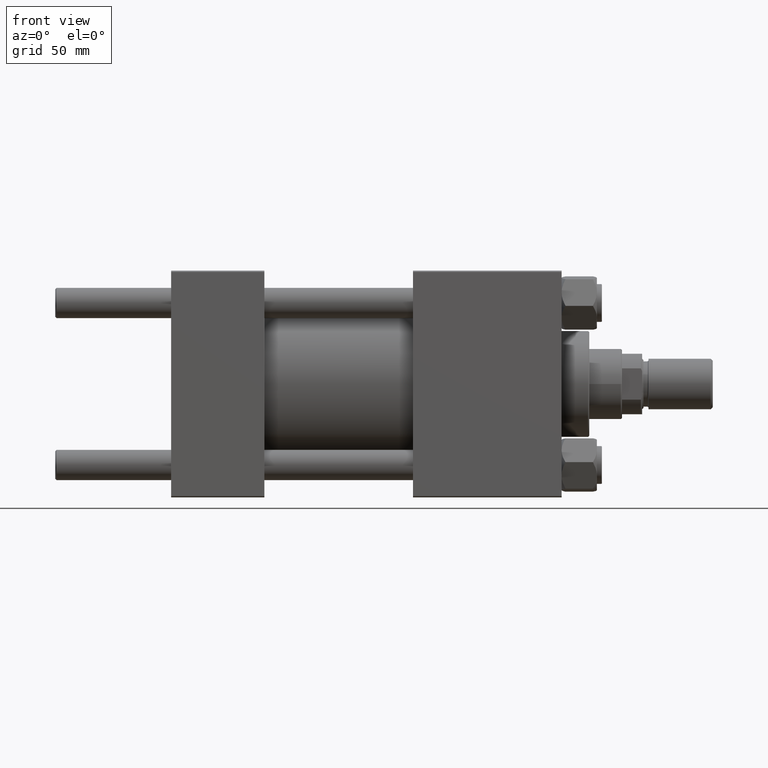
[diagram: clean part render]
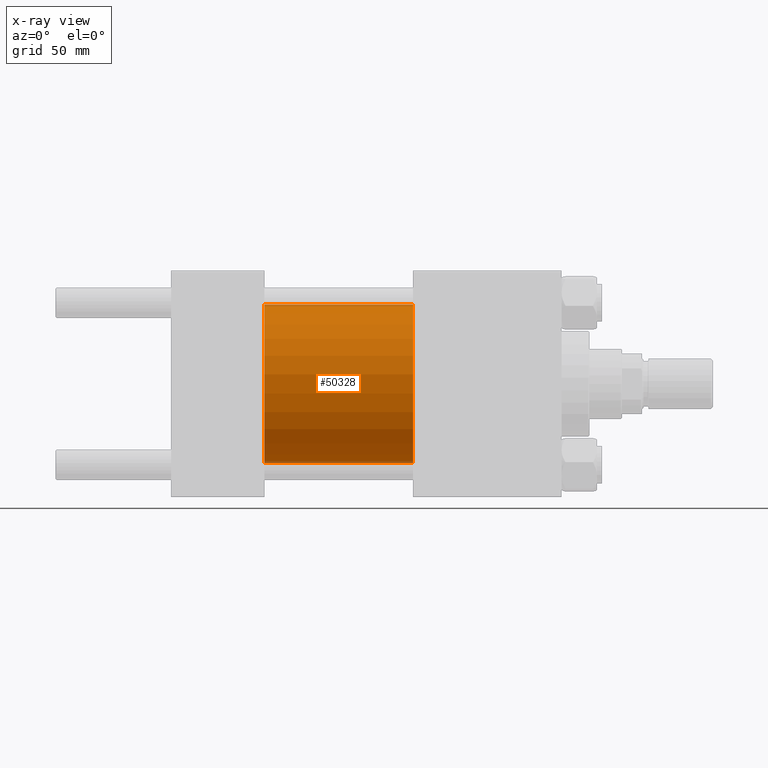
[diagram: x-ray — body ghosted, one internal face saturated and labeled with its STEP entity id]
A machine part, front view, then the same camera in x-ray: the body is ghosted and one INTERNAL B-rep face — a face not visible from any outside direction — is saturated and labeled: STEP entity #50328.
In plain terms, the highlighted cylindrical surface (partial cylindrical patch) has radius 31.5 mm, axis along (-1, -0, -0).
Its self-contained STEP definition (entity closure, byte-faithful):
#2346 = LINE ( 'NONE', #45136, #49511 ) ;
#4330 = DIRECTION ( 'NONE',  ( -1.000000000000000000, -0.000000000000000000, -0.000000000000000000 ) ) ;
#5619 = DIRECTION ( 'NONE',  ( 0.000000000000000000, 0.000000000000000000, -1.000000000000000000 ) ) ;
#6726 = CIRCLE ( 'NONE', #23805, 31.50000000000000000 ) ;
#8159 = CYLINDRICAL_SURFACE ( 'NONE', #16162, 31.50000000000000000 ) ;
#8962 = EDGE_LOOP ( 'NONE', ( #37425, #45766, #34417, #44333 ) ) ;
#12010 = LINE ( 'NONE', #27563, #12782 ) ;
#12782 = VECTOR ( 'NONE', #20662, 1000.000000000000000 ) ;
#13258 = CARTESIAN_POINT ( 'NONE',  ( 37.00000000000000000, 0.000000000000000000, 0.000000000000000000 ) ) ;
#13401 = DIRECTION ( 'NONE',  ( 0.000000000000000000, 0.000000000000000000, -1.000000000000000000 ) ) ;
#13816 = DIRECTION ( 'NONE',  ( -1.000000000000000000, -0.000000000000000000, -0.000000000000000000 ) ) ;
#15399 = EDGE_CURVE ( 'NONE', #26593, #33480, #23415, .T. ) ;
#16162 = AXIS2_PLACEMENT_3D ( 'NONE', #39236, #4330, #19864 ) ;
#16925 = CARTESIAN_POINT ( 'NONE',  ( 96.00000000000000000, 3.857637417314162689E-15, -31.50000000000000000 ) ) ;
#17354 = CARTESIAN_POINT ( 'NONE',  ( 37.00000000000000000, 0.000000000000000000, 31.50000000000000000 ) ) ;
#19864 = DIRECTION ( 'NONE',  ( 0.000000000000000000, 0.000000000000000000, 1.000000000000000000 ) ) ;
#20662 = DIRECTION ( 'NONE',  ( -1.000000000000000000, -0.000000000000000000, -0.000000000000000000 ) ) ;
#21155 = EDGE_CURVE ( 'NONE', #26593, #42460, #2346, .T. ) ;
#23415 = CIRCLE ( 'NONE', #36426, 31.50000000000000000 ) ;
#23805 = AXIS2_PLACEMENT_3D ( 'NONE', #13258, #28792, #5619 ) ;
#25133 = DIRECTION ( 'NONE',  ( 1.000000000000000000, 0.000000000000000000, 0.000000000000000000 ) ) ;
#26066 = CARTESIAN_POINT ( 'NONE',  ( 37.00000000000000000, 3.857637417314162689E-15, -31.50000000000000000 ) ) ;
#26593 = VERTEX_POINT ( 'NONE', #36032 ) ;
#27563 = CARTESIAN_POINT ( 'NONE',  ( 96.00000000000000000, 3.857637417314162689E-15, -31.50000000000000000 ) ) ;
#28792 = DIRECTION ( 'NONE',  ( 1.000000000000000000, 0.000000000000000000, 0.000000000000000000 ) ) ;
#33480 = VERTEX_POINT ( 'NONE', #16925 ) ;
#34417 = ORIENTED_EDGE ( 'NONE', *, *, #34842, .F. ) ;
#34842 = EDGE_CURVE ( 'NONE', #42460, #47264, #6726, .T. ) ;
#36032 = CARTESIAN_POINT ( 'NONE',  ( 96.00000000000000000, 0.000000000000000000, 31.50000000000000000 ) ) ;
#36426 = AXIS2_PLACEMENT_3D ( 'NONE', #44242, #25133, #13401 ) ;
#37425 = ORIENTED_EDGE ( 'NONE', *, *, #15399, .T. ) ;
#39236 = CARTESIAN_POINT ( 'NONE',  ( 96.00000000000000000, 0.000000000000000000, 0.000000000000000000 ) ) ;
#42460 = VERTEX_POINT ( 'NONE', #17354 ) ;
#43073 = FACE_OUTER_BOUND ( 'NONE', #8962, .T. ) ;
#44053 = EDGE_CURVE ( 'NONE', #33480, #47264, #12010, .T. ) ;
#44242 = CARTESIAN_POINT ( 'NONE',  ( 96.00000000000000000, 0.000000000000000000, 0.000000000000000000 ) ) ;
#44333 = ORIENTED_EDGE ( 'NONE', *, *, #21155, .F. ) ;
#45136 = CARTESIAN_POINT ( 'NONE',  ( 96.00000000000000000, 0.000000000000000000, 31.50000000000000000 ) ) ;
#45766 = ORIENTED_EDGE ( 'NONE', *, *, #44053, .T. ) ;
#47264 = VERTEX_POINT ( 'NONE', #26066 ) ;
#49511 = VECTOR ( 'NONE', #13816, 1000.000000000000000 ) ;
#50328 = ADVANCED_FACE ( 'NONE', ( #43073 ), #8159, .F. ) ;